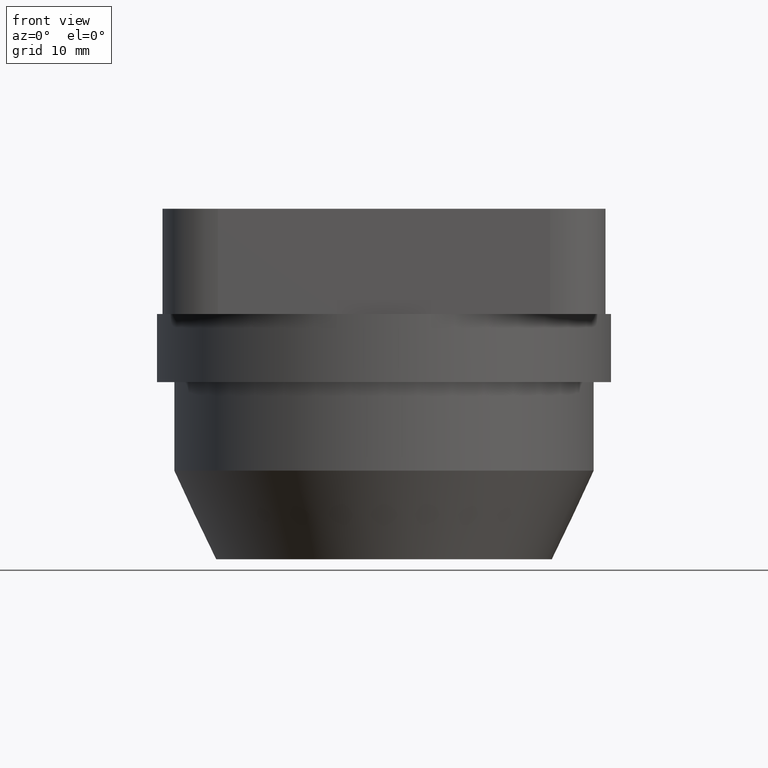
[diagram: clean part render]
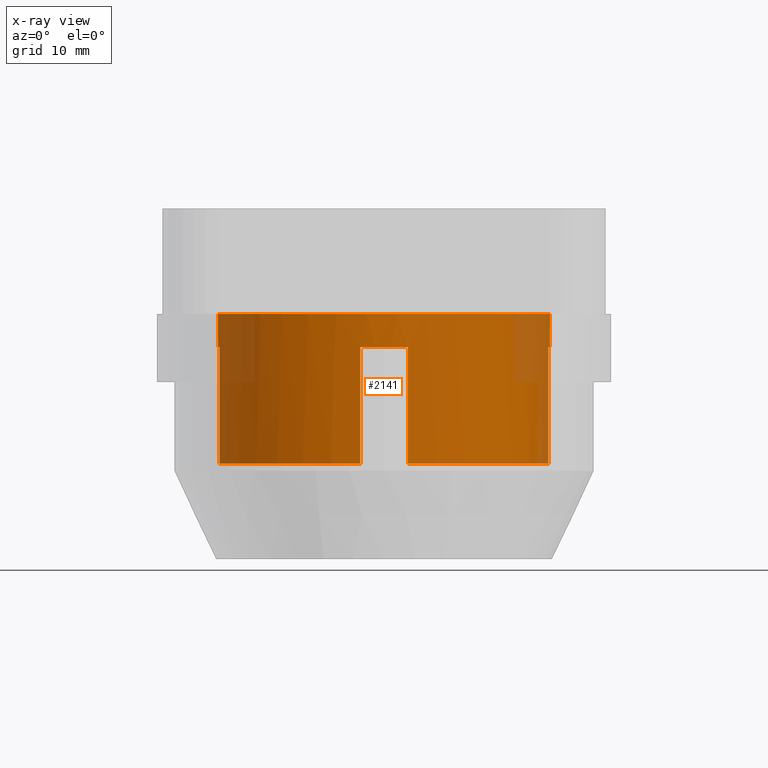
[diagram: x-ray — body ghosted, one internal face saturated and labeled with its STEP entity id]
A machine part, front view, then the same camera in x-ray: the body is ghosted and one INTERNAL B-rep face — a face not visible from any outside direction — is saturated and labeled: STEP entity #2141.
In plain terms, the highlighted cylindrical surface (bore or boss wall) has radius 15 mm, axis along (0, 0, -1).
Its self-contained STEP definition (entity closure, byte-faithful):
#1912=CARTESIAN_POINT('',(-6.003483861351104,-23.558636580372692,-13.500000000000000));
#1913=VERTEX_POINT('',#1912);
#1933=CARTESIAN_POINT('',(-18.698600903665053,-10.863519538058750,-13.500000000000000));
#1934=VERTEX_POINT('',#1933);
#1935=CARTESIAN_POINT('',(-3.853483861351106,-8.713519538058748,-13.500000000000000));
#1936=DIRECTION('',(0.0,0.0,-1.000000000000000));
#1937=DIRECTION('',(-0.707106781186547,-0.707106781186547,0.0));
#1938=AXIS2_PLACEMENT_3D('',#1935,#1936,#1937);
#1939=CIRCLE('',#1938,15.0);
#1940=EDGE_CURVE('',#1913,#1934,#1939,.T.);
#1979=CARTESIAN_POINT('',(-18.698600903665053,-10.863519538058748,-3.000000000000003));
#1980=VERTEX_POINT('',#1979);
#1981=CARTESIAN_POINT('',(-18.698600903665053,-10.863519538058748,-3.000000000000003));
#1982=DIRECTION('',(0.0,0.0,-1.0));
#1983=VECTOR('',#1982,10.499999999999996);
#1984=LINE('',#1981,#1983);
#1985=EDGE_CURVE('',#1980,#1934,#1984,.T.);
#2004=CARTESIAN_POINT('',(-3.853483861351106,-8.713519538058748,0.0));
#2005=DIRECTION('',(0.0,0.0,-1.0));
#2006=DIRECTION('',(1.0,0.0,0.0));
#2007=AXIS2_PLACEMENT_3D('',#2004,#2005,#2006);
#2008=CYLINDRICAL_SURFACE('',#2007,15.0);
#2009=ORIENTED_EDGE('',*,*,#1940,.F.);
#2010=CARTESIAN_POINT('',(-6.003483861351104,-23.558636580372692,-2.999999999999998));
#2011=VERTEX_POINT('',#2010);
#2012=CARTESIAN_POINT('',(-6.003483861351104,-23.558636580372692,-13.500000000000000));
#2013=DIRECTION('',(0.0,0.0,1.0));
#2014=VECTOR('',#2013,10.500000000000002);
#2015=LINE('',#2012,#2014);
#2016=EDGE_CURVE('',#1913,#2011,#2015,.T.);
#2017=ORIENTED_EDGE('',*,*,#2016,.T.);
#2018=CARTESIAN_POINT('',(-1.703483861351104,-23.558636580372692,-2.999999999999998));
#2019=VERTEX_POINT('',#2018);
#2020=CARTESIAN_POINT('',(-3.853483861351106,-8.713519538058748,-2.999999999999998));
#2021=DIRECTION('',(0.0,0.0,1.0));
#2022=DIRECTION('',(1.0,0.0,0.0));
#2023=AXIS2_PLACEMENT_3D('',#2020,#2021,#2022);
#2024=CIRCLE('',#2023,15.0);
#2025=EDGE_CURVE('',#2011,#2019,#2024,.T.);
#2026=ORIENTED_EDGE('',*,*,#2025,.T.);
#2027=CARTESIAN_POINT('',(-1.703483861351104,-23.558636580372692,-13.500000000000000));
#2028=VERTEX_POINT('',#2027);
#2029=CARTESIAN_POINT('',(-1.703483861351104,-23.558636580372692,-2.999999999999998));
#2030=DIRECTION('',(0.0,0.0,-1.0));
#2031=VECTOR('',#2030,10.500000000000002);
#2032=LINE('',#2029,#2031);
#2033=EDGE_CURVE('',#2019,#2028,#2032,.T.);
#2034=ORIENTED_EDGE('',*,*,#2033,.T.);
#2035=CARTESIAN_POINT('',(10.991633180962841,-10.863519538058753,-13.500000000000000));
#2036=VERTEX_POINT('',#2035);
#2037=CARTESIAN_POINT('',(-3.853483861351106,-8.713519538058748,-13.500000000000000));
#2038=DIRECTION('',(0.0,0.0,-1.000000000000000));
#2039=DIRECTION('',(0.707106781186547,-0.707106781186547,0.0));
#2040=AXIS2_PLACEMENT_3D('',#2037,#2038,#2039);
#2041=CIRCLE('',#2040,15.0);
#2042=EDGE_CURVE('',#2036,#2028,#2041,.T.);
#2043=ORIENTED_EDGE('',*,*,#2042,.F.);
#2044=CARTESIAN_POINT('',(10.991633180962843,-10.863519538058750,-3.000000000000000));
#2045=VERTEX_POINT('',#2044);
#2046=CARTESIAN_POINT('',(10.991633180962841,-10.863519538058753,-13.500000000000000));
#2047=DIRECTION('',(0.0,0.0,1.0));
#2048=VECTOR('',#2047,10.500000000000000);
#2049=LINE('',#2046,#2048);
#2050=EDGE_CURVE('',#2036,#2045,#2049,.T.);
#2051=ORIENTED_EDGE('',*,*,#2050,.T.);
#2052=CARTESIAN_POINT('',(10.991633180962841,-6.563519538058747,-3.000000000000000));
#2053=VERTEX_POINT('',#2052);
#2054=CARTESIAN_POINT('',(-3.853483861351106,-8.713519538058748,-3.000000000000000));
#2055=DIRECTION('',(0.0,0.0,1.0));
#2056=DIRECTION('',(1.0,0.0,0.0));
#2057=AXIS2_PLACEMENT_3D('',#2054,#2055,#2056);
#2058=CIRCLE('',#2057,15.0);
#2059=EDGE_CURVE('',#2045,#2053,#2058,.T.);
#2060=ORIENTED_EDGE('',*,*,#2059,.T.);
#2061=CARTESIAN_POINT('',(10.991633180962843,-6.563519538058768,-13.500000000000000));
#2062=VERTEX_POINT('',#2061);
#2063=CARTESIAN_POINT('',(10.991633180962841,-6.563519538058747,-3.000000000000000));
#2064=DIRECTION('',(0.0,0.0,-1.0));
#2065=VECTOR('',#2064,10.500000000000000);
#2066=LINE('',#2063,#2065);
#2067=EDGE_CURVE('',#2053,#2062,#2066,.T.);
#2068=ORIENTED_EDGE('',*,*,#2067,.T.);
#2069=CARTESIAN_POINT('',(-1.703483861351103,6.131597504255200,-13.500000000000000));
#2070=VERTEX_POINT('',#2069);
#2071=CARTESIAN_POINT('',(-3.853483861351106,-8.713519538058748,-13.500000000000000));
#2072=DIRECTION('',(0.0,0.0,-1.000000000000000));
#2073=DIRECTION('',(0.707106781186547,0.707106781186547,0.0));
#2074=AXIS2_PLACEMENT_3D('',#2071,#2072,#2073);
#2075=CIRCLE('',#2074,15.0);
#2076=EDGE_CURVE('',#2070,#2062,#2075,.T.);
#2077=ORIENTED_EDGE('',*,*,#2076,.F.);
#2078=CARTESIAN_POINT('',(-1.703483861351103,6.131597504255200,-3.000000000000000));
#2079=VERTEX_POINT('',#2078);
#2080=CARTESIAN_POINT('',(-1.703483861351103,6.131597504255200,-13.500000000000000));
#2081=DIRECTION('',(0.0,0.0,1.0));
#2082=VECTOR('',#2081,10.500000000000000);
#2083=LINE('',#2080,#2082);
#2084=EDGE_CURVE('',#2070,#2079,#2083,.T.);
#2085=ORIENTED_EDGE('',*,*,#2084,.T.);
#2086=CARTESIAN_POINT('',(-6.003483861351102,6.131597504255202,-3.000000000000000));
#2087=VERTEX_POINT('',#2086);
#2088=CARTESIAN_POINT('',(-3.853483861351106,-8.713519538058748,-3.000000000000000));
#2089=DIRECTION('',(0.0,0.0,1.0));
#2090=DIRECTION('',(1.0,0.0,0.0));
#2091=AXIS2_PLACEMENT_3D('',#2088,#2089,#2090);
#2092=CIRCLE('',#2091,15.0);
#2093=EDGE_CURVE('',#2079,#2087,#2092,.T.);
#2094=ORIENTED_EDGE('',*,*,#2093,.T.);
#2095=CARTESIAN_POINT('',(-6.003483861351096,6.131597504255202,-13.500000000000000));
#2096=VERTEX_POINT('',#2095);
#2097=CARTESIAN_POINT('',(-6.003483861351102,6.131597504255202,-3.000000000000000));
#2098=DIRECTION('',(0.0,0.0,-1.0));
#2099=VECTOR('',#2098,10.500000000000000);
#2100=LINE('',#2097,#2099);
#2101=EDGE_CURVE('',#2087,#2096,#2100,.T.);
#2102=ORIENTED_EDGE('',*,*,#2101,.T.);
#2103=CARTESIAN_POINT('',(-18.698600903665053,-6.563519538058747,-13.500000000000000));
#2104=VERTEX_POINT('',#2103);
#2105=CARTESIAN_POINT('',(-3.853483861351106,-8.713519538058748,-13.500000000000000));
#2106=DIRECTION('',(0.0,0.0,-1.000000000000000));
#2107=DIRECTION('',(-0.707106781186547,0.707106781186547,0.0));
#2108=AXIS2_PLACEMENT_3D('',#2105,#2106,#2107);
#2109=CIRCLE('',#2108,15.0);
#2110=EDGE_CURVE('',#2104,#2096,#2109,.T.);
#2111=ORIENTED_EDGE('',*,*,#2110,.F.);
#2112=CARTESIAN_POINT('',(-18.698600903665053,-6.563519538058747,-3.000000000000003));
#2113=VERTEX_POINT('',#2112);
#2114=CARTESIAN_POINT('',(-18.698600903665053,-6.563519538058747,-13.500000000000000));
#2115=DIRECTION('',(0.0,0.0,1.0));
#2116=VECTOR('',#2115,10.499999999999996);
#2117=LINE('',#2114,#2116);
#2118=EDGE_CURVE('',#2104,#2113,#2117,.T.);
#2119=ORIENTED_EDGE('',*,*,#2118,.T.);
#2120=CARTESIAN_POINT('',(-3.853483861351106,-8.713519538058748,-3.000000000000003));
#2121=DIRECTION('',(0.0,0.0,1.0));
#2122=DIRECTION('',(1.0,0.0,0.0));
#2123=AXIS2_PLACEMENT_3D('',#2120,#2121,#2122);
#2124=CIRCLE('',#2123,15.0);
#2125=EDGE_CURVE('',#2113,#1980,#2124,.T.);
#2126=ORIENTED_EDGE('',*,*,#2125,.T.);
#2127=ORIENTED_EDGE('',*,*,#1985,.T.);
#2128=EDGE_LOOP('',(#2009,#2017,#2026,#2034,#2043,#2051,#2060,#2068,#2077,#2085,#2094,#2102,#2111,#2119,#2126,#2127));
#2129=FACE_OUTER_BOUND('',#2128,.T.);
#2130=CARTESIAN_POINT('',(-18.853483861351105,-8.713519538058744,0.0));
#2131=VERTEX_POINT('',#2130);
#2132=CARTESIAN_POINT('',(-3.853483861351106,-8.713519538058748,0.0));
#2133=DIRECTION('',(0.0,0.0,1.0));
#2134=DIRECTION('',(1.0,0.0,0.0));
#2135=AXIS2_PLACEMENT_3D('',#2132,#2133,#2134);
#2136=CIRCLE('',#2135,15.0);
#2137=EDGE_CURVE('',#2131,#2131,#2136,.T.);
#2138=ORIENTED_EDGE('',*,*,#2137,.F.);
#2139=EDGE_LOOP('',(#2138));
#2140=FACE_BOUND('',#2139,.T.);
#2141=ADVANCED_FACE('',(#2129,#2140),#2008,.T.);